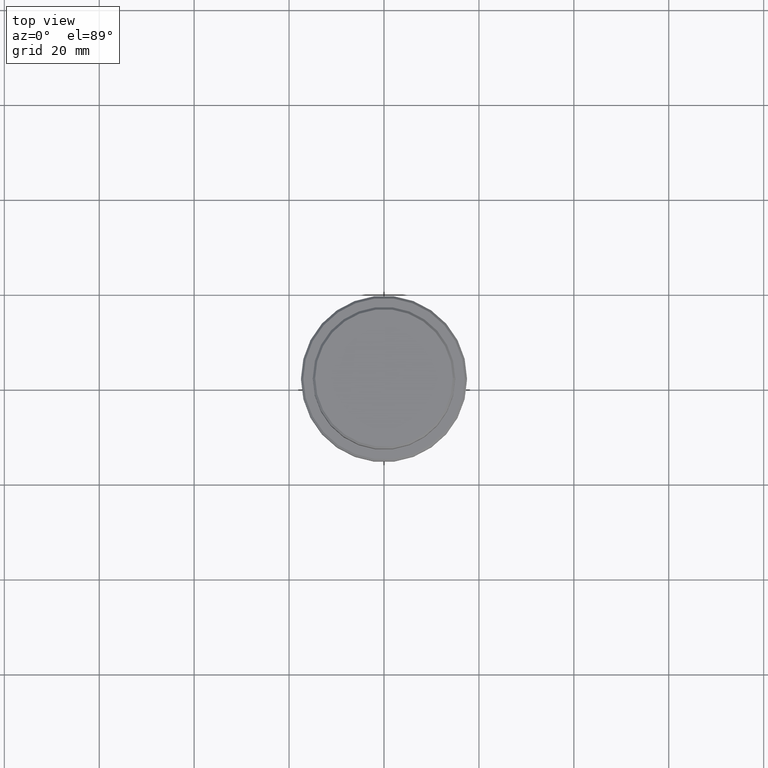
[diagram: clean part render]
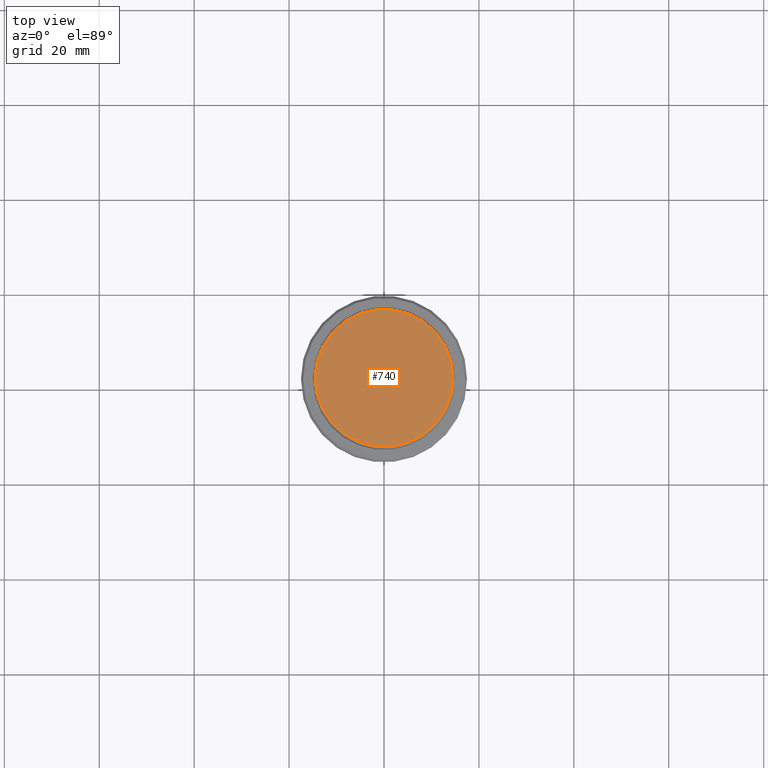
[diagram: same view with one face highlighted and labeled with its STEP entity id]
A machine part, top view. The second image highlights one B-rep face of the part: STEP entity #740.
In plain terms, the highlighted planar face has unit normal (0, -0, 1).
Its self-contained STEP definition (entity closure, byte-faithful):
#220 = DIRECTION ( 'NONE',  ( 0.000000000000000000, -0.000000000000000000, 1.000000000000000000 ) ) ;
#231 = DIRECTION ( 'NONE',  ( -0.000000000000000000, -0.000000000000000000, 1.000000000000000000 ) ) ;
#317 = VERTEX_POINT ( 'NONE', #325 ) ;
#322 = CARTESIAN_POINT ( 'NONE',  ( 14.49999999999999645, 1.806354028742345802E-15, 0.000000000000000000 ) ) ;
#325 = CARTESIAN_POINT ( 'NONE',  ( -14.49999999999999645, 0.000000000000000000, 0.000000000000000000 ) ) ;
#330 = CIRCLE ( 'NONE', #1065, 14.49999999999999645 ) ;
#350 = ORIENTED_EDGE ( 'NONE', *, *, #1299, .T. ) ;
#500 = EDGE_CURVE ( 'NONE', #317, #753, #330, .T. ) ;
#511 = FACE_OUTER_BOUND ( 'NONE', #826, .T. ) ;
#525 = AXIS2_PLACEMENT_3D ( 'NONE', #711, #1263, #1033 ) ;
#552 = ORIENTED_EDGE ( 'NONE', *, *, #500, .T. ) ;
#587 = CARTESIAN_POINT ( 'NONE',  ( 0.000000000000000000, 0.000000000000000000, 0.000000000000000000 ) ) ;
#667 = DIRECTION ( 'NONE',  ( 1.000000000000000000, 0.000000000000000000, 0.000000000000000000 ) ) ;
#680 = AXIS2_PLACEMENT_3D ( 'NONE', #763, #220, #848 ) ;
#711 = CARTESIAN_POINT ( 'NONE',  ( 0.000000000000000000, 0.000000000000000000, 0.000000000000000000 ) ) ;
#737 = PLANE ( 'NONE',  #680 ) ;
#740 = ADVANCED_FACE ( 'NONE', ( #511 ), #737, .T. ) ;
#753 = VERTEX_POINT ( 'NONE', #322 ) ;
#763 = CARTESIAN_POINT ( 'NONE',  ( 0.000000000000000000, 0.000000000000000000, 0.000000000000000000 ) ) ;
#826 = EDGE_LOOP ( 'NONE', ( #552, #350 ) ) ;
#848 = DIRECTION ( 'NONE',  ( 1.000000000000000000, 0.000000000000000000, 0.000000000000000000 ) ) ;
#1033 = DIRECTION ( 'NONE',  ( 1.000000000000000000, 0.000000000000000000, 0.000000000000000000 ) ) ;
#1065 = AXIS2_PLACEMENT_3D ( 'NONE', #587, #231, #667 ) ;
#1263 = DIRECTION ( 'NONE',  ( -0.000000000000000000, -0.000000000000000000, 1.000000000000000000 ) ) ;
#1299 = EDGE_CURVE ( 'NONE', #753, #317, #1394, .T. ) ;
#1394 = CIRCLE ( 'NONE', #525, 14.49999999999999645 ) ;